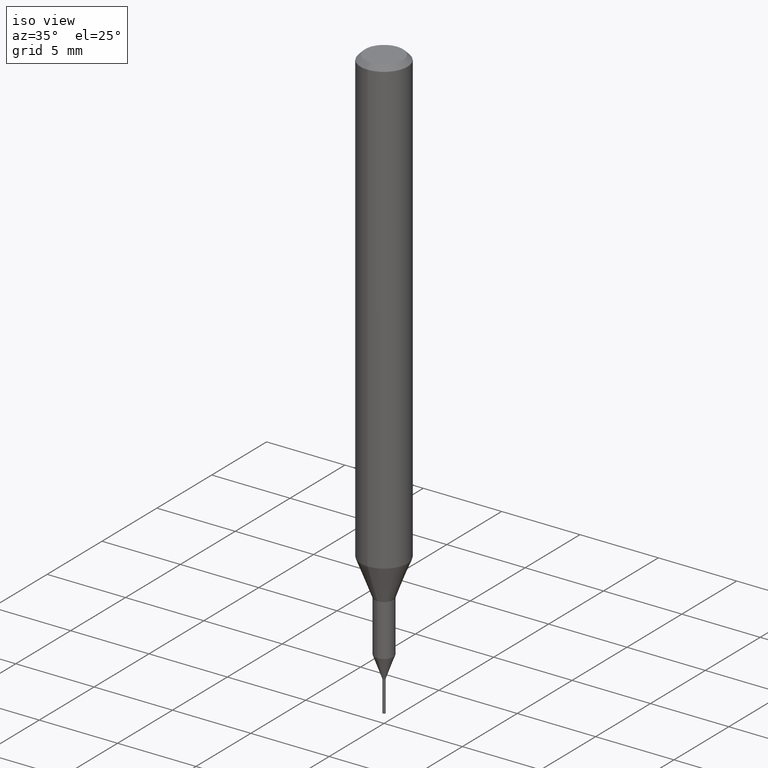
[diagram: clean part render]
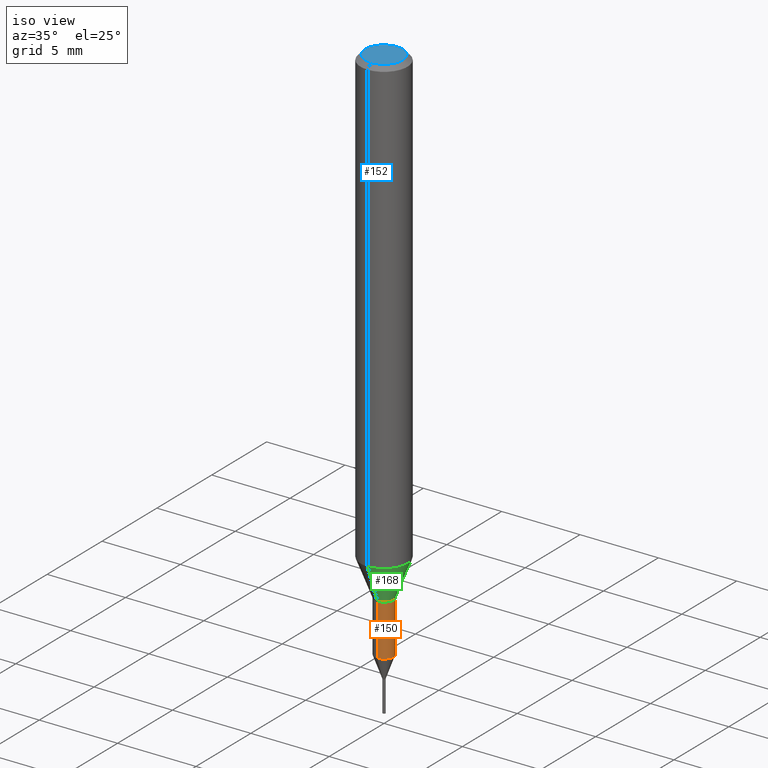
[diagram: same view with three faces highlighted in distinct colors, each labeled with its STEP entity id]
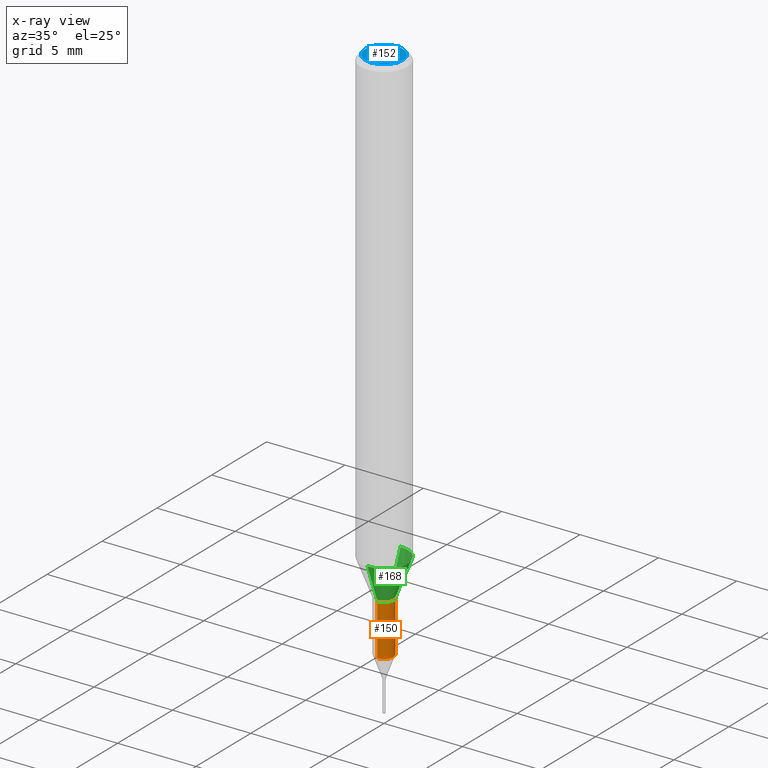
[diagram: x-ray of the same camera — body ghosted, the three highlighted faces saturated]
A machine part, iso view with three faces highlighted in distinct colors.
The next image is the same camera in x-ray (body ghosted, the three faces saturated) — at least one of them is partly hidden behind the body in this view.
Their STEP definitions:

[orange] entity #150 — the highlighted cylindrical surface (edge-blend (fillet) strip) has radius 0.5999 mm, axis along (-0, -0, 1).
#116=EDGE_CURVE('',#254,#266,#293,.T.);
#126=EDGE_CURVE('',#226,#254,#306,.T.);
#130=VERTEX_POINT('',#310);
#144=EDGE_CURVE('',#130,#226,#324,.T.);
#150=ADVANCED_FACE('',(#330),#331,.T.);
#204=EDGE_CURVE('',#130,#266,#390,.T.);
#226=VERTEX_POINT('',#415);
#254=VERTEX_POINT('',#447);
#266=VERTEX_POINT('',#464);
#293=LINE('',#486,#487);
#306=CIRCLE('',#502,0.59995);
#310=CARTESIAN_POINT('',(0.0,0.59995,-31.3));
#324=LINE('',#529,#530);
#330=FACE_OUTER_BOUND('',#538,.T.);
#331=CYLINDRICAL_SURFACE('',#539,0.59995);
#390=CIRCLE('',#617,0.59995);
#415=CARTESIAN_POINT('',(0.0,0.59995,-34.585));
#447=CARTESIAN_POINT('',(7.34702581975735E-017,-0.59995,-34.585));
#464=CARTESIAN_POINT('',(7.34702581975735E-017,-0.59995,-31.3));
#486=CARTESIAN_POINT('',(7.34702581975735E-017,-0.59995,-32.9425));
#487=VECTOR('',#714,1.0);
#502=AXIS2_PLACEMENT_3D('',#739,#740,#741);
#529=CARTESIAN_POINT('',(-7.34702581975735E-017,0.59995,-32.9425));
#530=VECTOR('',#751,1.0);
#538=EDGE_LOOP('',(#759,#760,#761,#762));
#539=AXIS2_PLACEMENT_3D('',#763,#764,#765);
#617=AXIS2_PLACEMENT_3D('',#825,#826,#827);
#714=DIRECTION('',(-0.0,-0.0,1.0));
#739=CARTESIAN_POINT('',(0.0,0.0,-34.585));
#740=DIRECTION('',(0.0,0.0,-1.0));
#741=DIRECTION('',(0.0,1.0,0.0));
#751=DIRECTION('',(0.0,0.0,-1.0));
#759=ORIENTED_EDGE('',*,*,#144,.F.);
#760=ORIENTED_EDGE('',*,*,#204,.T.);
#761=ORIENTED_EDGE('',*,*,#116,.F.);
#762=ORIENTED_EDGE('',*,*,#126,.F.);
#763=CARTESIAN_POINT('',(0.0,0.0,-32.9425));
#764=DIRECTION('',(-0.0,-0.0,1.0));
#765=DIRECTION('',(0.0,1.0,0.0));
#825=CARTESIAN_POINT('',(0.0,0.0,-31.3));
#826=DIRECTION('',(0.0,0.0,-1.0));
#827=DIRECTION('',(0.0,1.0,0.0));

[blue] entity #152 — the highlighted planar face has unit normal (-0, 0, 1).
#112=EDGE_CURVE('',#268,#134,#289,.T.);
#134=VERTEX_POINT('',#314);
#146=EDGE_CURVE('',#134,#268,#326,.T.);
#152=ADVANCED_FACE('',(#333),#334,.T.);
#268=VERTEX_POINT('',#466);
#289=CIRCLE('',#480,1.2);
#314=CARTESIAN_POINT('',(0.0,1.2,0.0));
#326=CIRCLE('',#533,1.2);
#333=FACE_OUTER_BOUND('',#541,.T.);
#334=PLANE('',#542);
#466=CARTESIAN_POINT('',(1.46952762458685E-016,-1.2,0.0));
#480=AXIS2_PLACEMENT_3D('',#708,#709,#710);
#533=AXIS2_PLACEMENT_3D('',#752,#753,#754);
#541=EDGE_LOOP('',(#767,#768));
#542=AXIS2_PLACEMENT_3D('',#769,#770,#771);
#708=CARTESIAN_POINT('',(0.0,0.0,0.0));
#709=DIRECTION('',(0.0,0.0,-1.0));
#710=DIRECTION('',(0.0,1.0,0.0));
#752=CARTESIAN_POINT('',(0.0,0.0,0.0));
#753=DIRECTION('',(0.0,0.0,-1.0));
#754=DIRECTION('',(0.0,1.0,0.0));
#767=ORIENTED_EDGE('',*,*,#146,.F.);
#768=ORIENTED_EDGE('',*,*,#112,.F.);
#769=CARTESIAN_POINT('',(0.0,0.6,0.0));
#770=DIRECTION('',(-0.0,0.0,1.0));
#771=DIRECTION('',(0.0,-1.0,0.0));

[green] entity #168 — the highlighted conical surface has half-angle 20.997 deg.
#132=EDGE_CURVE('',#178,#240,#312,.T.);
#136=EDGE_CURVE('',#178,#238,#316,.T.);
#154=VERTEX_POINT('',#336);
#168=ADVANCED_FACE('',(#350),#351,.T.);
#178=VERTEX_POINT('',#362);
#198=EDGE_CURVE('',#154,#238,#384,.T.);
#234=EDGE_CURVE('',#240,#154,#425,.T.);
#238=VERTEX_POINT('',#429);
#240=VERTEX_POINT('',#431);
#312=LINE('',#511,#512);
#316=CIRCLE('',#517,1.5);
#336=CARTESIAN_POINT('',(7.34763812293426E-017,-0.6,-31.3));
#350=FACE_OUTER_BOUND('',#565,.T.);
#351=CONICAL_SURFACE('',#566,1.05,0.366459241971866);
#362=CARTESIAN_POINT('',(0.0,1.5,-28.955));
#384=LINE('',#609,#610);
#425=CIRCLE('',#660,0.6);
#429=CARTESIAN_POINT('',(1.83690953073357E-016,-1.5,-28.955));
#431=CARTESIAN_POINT('',(0.0,0.6,-31.3));
#511=CARTESIAN_POINT('',(-1.2858366715135E-016,1.05,-30.1275));
#512=VECTOR('',#743,1.0);
#517=AXIS2_PLACEMENT_3D('',#744,#745,#746);
#565=EDGE_LOOP('',(#779,#780,#781,#782));
#566=AXIS2_PLACEMENT_3D('',#783,#784,#785);
#609=CARTESIAN_POINT('',(1.2858366715135E-016,-1.05,-30.1275));
#610=VECTOR('',#824,1.0);
#660=AXIS2_PLACEMENT_3D('',#875,#876,#877);
#743=DIRECTION('',(4.38791184365088E-017,-0.358312026550805,-0.93360189140182));
#744=CARTESIAN_POINT('',(0.0,0.0,-28.955));
#745=DIRECTION('',(0.0,0.0,-1.0));
#746=DIRECTION('',(0.0,1.0,0.0));
#779=ORIENTED_EDGE('',*,*,#132,.F.);
#780=ORIENTED_EDGE('',*,*,#136,.T.);
#781=ORIENTED_EDGE('',*,*,#198,.F.);
#782=ORIENTED_EDGE('',*,*,#234,.F.);
#783=CARTESIAN_POINT('',(0.0,0.0,-30.1275));
#784=DIRECTION('',(-0.0,-0.0,1.0));
#785=DIRECTION('',(0.0,1.0,0.0));
#824=DIRECTION('',(4.38791184365088E-017,-0.358312026550805,0.93360189140182));
#875=CARTESIAN_POINT('',(0.0,0.0,-31.3));
#876=DIRECTION('',(0.0,0.0,-1.0));
#877=DIRECTION('',(0.0,1.0,0.0));